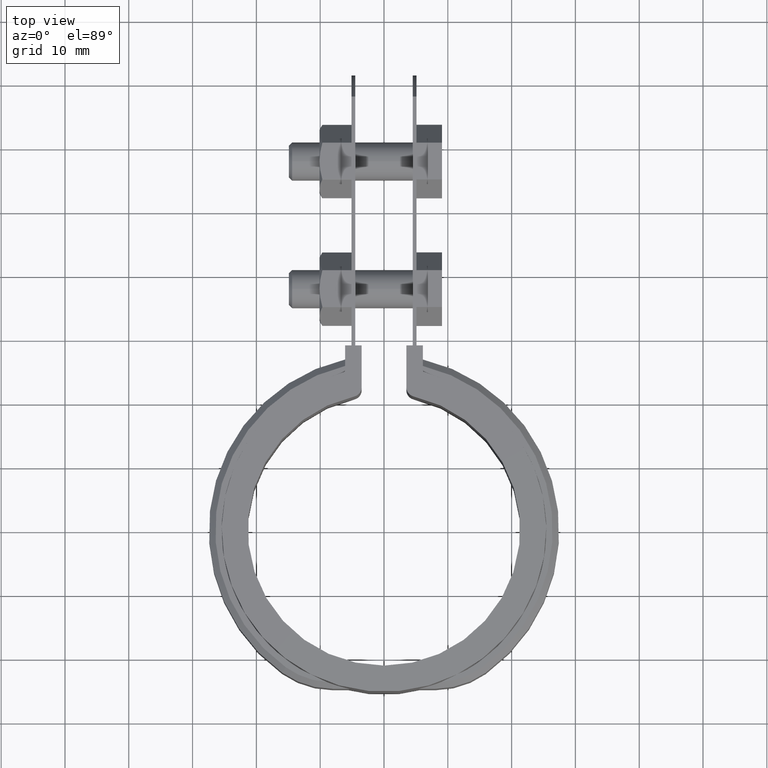
[diagram: clean part render]
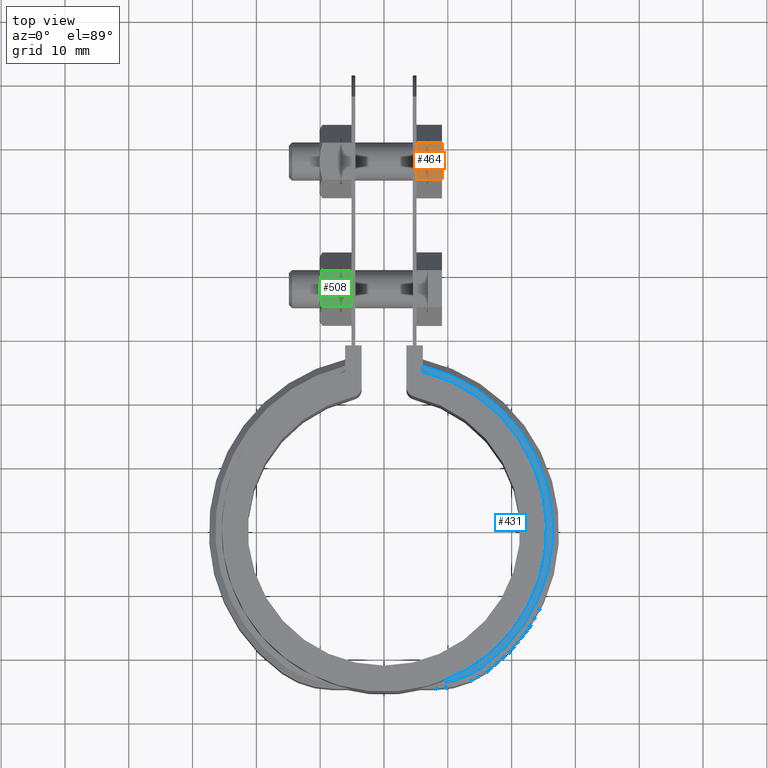
[diagram: same view with three faces highlighted in distinct colors, each labeled with its STEP entity id]
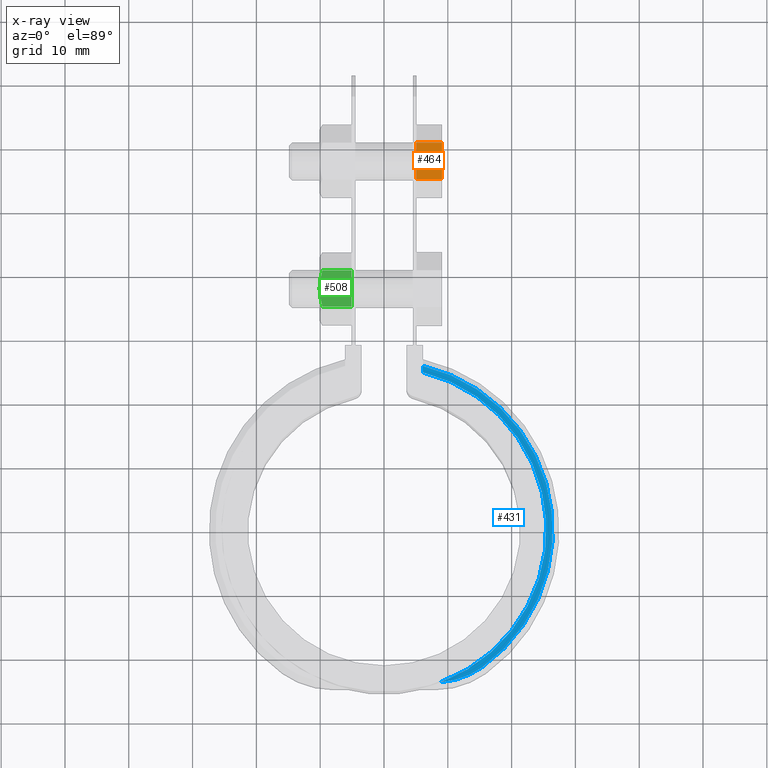
[diagram: x-ray of the same camera — body ghosted, the three highlighted faces saturated]
A machine part, top view with three faces highlighted in distinct colors.
The next image is the same camera in x-ray (body ghosted, the three faces saturated) — at least one of them is partly hidden behind the body in this view.
Their STEP definitions:

[orange] entity #464 — the highlighted planar face has unit normal (0, 0, -1).
#464 = ADVANCED_FACE( '', ( #855 ), #856, .F. );
#855 = FACE_OUTER_BOUND( '', #1701, .T. );
#856 = PLANE( '', #1702 );
#1701 = EDGE_LOOP( '', ( #4431, #4432, #4433, #4434 ) );
#1702 = AXIS2_PLACEMENT_3D( '', #4435, #4436, #4437 );
#4431 = ORIENTED_EDGE( '', *, *, #5283, .T. );
#4432 = ORIENTED_EDGE( '', *, *, #5299, .F. );
#4433 = ORIENTED_EDGE( '', *, *, #5295, .F. );
#4434 = ORIENTED_EDGE( '', *, *, #5300, .T. );
#4435 = CARTESIAN_POINT( '', ( 9.10000000000000, 60.7892623659209, -7.50000000000001 ) );
#4436 = DIRECTION( '', ( 0.000000000000000, 0.000000000000000, -1.00000000000000 ) );
#4437 = DIRECTION( '', ( -1.00000000000000, -1.76868732008753E-074, 0.000000000000000 ) );
#5283 = EDGE_CURVE( '', #6125, #6123, #6126, .T. );
#5295 = EDGE_CURVE( '', #6144, #6146, #6147, .T. );
#5299 = EDGE_CURVE( '', #6146, #6123, #6152, .T. );
#5300 = EDGE_CURVE( '', #6144, #6125, #6153, .T. );
#6123 = VERTEX_POINT( '', #9687 );
#6125 = VERTEX_POINT( '', #9690 );
#6126 = LINE( '', #9691, #9692 );
#6144 = VERTEX_POINT( '', #9717 );
#6146 = VERTEX_POINT( '', #9720 );
#6147 = LINE( '', #9721, #9722 );
#6152 = LINE( '', #9730, #9731 );
#6153 = LINE( '', #9732, #9733 );
#9687 = CARTESIAN_POINT( '', ( 5.10000000000000, 55.0157596740246, -7.50000000000001 ) );
#9690 = CARTESIAN_POINT( '', ( 5.10000000000000, 60.7892623659209, -7.50000000000001 ) );
#9691 = CARTESIAN_POINT( '', ( 5.10000000000000, 60.7892623659209, -7.50000000000001 ) );
#9692 = VECTOR( '', #10563, 1000.00000000000 );
#9717 = CARTESIAN_POINT( '', ( 9.10000000000000, 60.7892623659209, -7.50000000000001 ) );
#9720 = CARTESIAN_POINT( '', ( 9.10000000000000, 55.0157596740246, -7.50000000000001 ) );
#9721 = CARTESIAN_POINT( '', ( 9.10000000000000, 60.7892623659209, -7.50000000000001 ) );
#9722 = VECTOR( '', #10581, 1000.00000000000 );
#9730 = CARTESIAN_POINT( '', ( 9.10000000000000, 55.0157596740246, -7.50000000000001 ) );
#9731 = VECTOR( '', #10585, 1000.00000000000 );
#9732 = CARTESIAN_POINT( '', ( 9.10000000000000, 60.7892623659209, -7.50000000000001 ) );
#9733 = VECTOR( '', #10586, 1000.00000000000 );
#10563 = DIRECTION( '', ( 1.76868732008753E-074, -1.00000000000000, 0.000000000000000 ) );
#10581 = DIRECTION( '', ( 1.76868732008753E-074, -1.00000000000000, 0.000000000000000 ) );
#10585 = DIRECTION( '', ( -1.00000000000000, -1.76868732008753E-074, 0.000000000000000 ) );
#10586 = DIRECTION( '', ( -1.00000000000000, -1.76868732008753E-074, 0.000000000000000 ) );

[blue] entity #431 — the highlighted planar face has unit normal (0, 0, 1).
#431 = ADVANCED_FACE( '', ( #786 ), #787, .T. );
#786 = FACE_OUTER_BOUND( '', #1632, .T. );
#787 = PLANE( '', #1633 );
#1632 = EDGE_LOOP( '', ( #4182, #4183, #4184, #4185 ) );
#1633 = AXIS2_PLACEMENT_3D( '', #4186, #4187, #4188 );
#4182 = ORIENTED_EDGE( '', *, *, #5223, .F. );
#4183 = ORIENTED_EDGE( '', *, *, #5261, .T. );
#4184 = ORIENTED_EDGE( '', *, *, #5257, .T. );
#4185 = ORIENTED_EDGE( '', *, *, #5240, .F. );
#4186 = CARTESIAN_POINT( '', ( -8.67361737988404E-016, -3.46944695195361E-015, -5.00000000000000 ) );
#4187 = DIRECTION( '', ( 0.000000000000000, 0.000000000000000, 1.00000000000000 ) );
#4188 = DIRECTION( '', ( 0.213196982952784, 0.977009235606210, 0.000000000000000 ) );
#5223 = EDGE_CURVE( '', #6035, #6037, #6038, .T. );
#5240 = EDGE_CURVE( '', #6037, #6063, #6064, .T. );
#5257 = EDGE_CURVE( '', #6087, #6063, #6088, .T. );
#5261 = EDGE_CURVE( '', #6035, #6087, #6093, .T. );
#6035 = VERTEX_POINT( '', #9551 );
#6037 = VERTEX_POINT( '', #9556 );
#6038 = CIRCLE( '', #9557, 25.4450000000000 );
#6063 = VERTEX_POINT( '', #9601 );
#6064 = LINE( '', #9602, #9603 );
#6087 = VERTEX_POINT( '', #9636 );
#6088 = CIRCLE( '', #9637, 26.4450000000000 );
#6093 = CIRCLE( '', #9643, 12.6000000000000 );
#9551 = CARTESIAN_POINT( '', ( 8.91979160752347, -23.8303449970485, -5.00000000000000 ) );
#9556 = CARTESIAN_POINT( '', ( 6.10000000000001, 24.7029962757557, -5.00000000000000 ) );
#9557 = AXIS2_PLACEMENT_3D( '', #10466, #10467, #10468 );
#9601 = CARTESIAN_POINT( '', ( 6.10000000000000, 25.7318484567277, -5.00000000000000 ) );
#9602 = CARTESIAN_POINT( '', ( 6.10000000000000, 24.7029962757557, -5.00000000000000 ) );
#9603 = VECTOR( '', #10485, 1000.00000000000 );
#9636 = CARTESIAN_POINT( '', ( 15.3872495721368, -21.5074539544962, -5.00000000000000 ) );
#9637 = AXIS2_PLACEMENT_3D( '', #10517, #10518, #10519 );
#9643 = AXIS2_PLACEMENT_3D( '', #10527, #10528, #10529 );
#10466 = CARTESIAN_POINT( '', ( -8.67361737988404E-016, -3.46944695195361E-015, -5.00000000000000 ) );
#10467 = DIRECTION( '', ( 0.000000000000000, 0.000000000000000, 1.00000000000000 ) );
#10468 = DIRECTION( '', ( 1.00000000000000, -2.77555756156289E-017, 0.000000000000000 ) );
#10485 = DIRECTION( '', ( 5.55111512312578E-017, 1.00000000000000, 0.000000000000000 ) );
#10517 = CARTESIAN_POINT( '', ( -8.67361737988404E-016, -3.46944695195361E-015, -5.00000000000000 ) );
#10518 = DIRECTION( '', ( 0.000000000000000, 0.000000000000000, 1.00000000000000 ) );
#10519 = DIRECTION( '', ( 1.00000000000000, 0.000000000000000, 0.000000000000000 ) );
#10527 = CARTESIAN_POINT( '', ( 8.05583173856056, -11.2600000000000, -5.00000000000000 ) );
#10528 = DIRECTION( '', ( 0.000000000000000, 0.000000000000000, 1.00000000000000 ) );
#10529 = DIRECTION( '', ( 1.00000000000000, 0.000000000000000, 0.000000000000000 ) );

[green] entity #508 — the highlighted planar face has unit normal (0, -0, -1).
#508 = ADVANCED_FACE( '', ( #953 ), #954, .F. );
#953 = FACE_OUTER_BOUND( '', #1799, .T. );
#954 = PLANE( '', #1800 );
#1799 = EDGE_LOOP( '', ( #4763, #4764, #4765, #4766, #4767 ) );
#1800 = AXIS2_PLACEMENT_3D( '', #4768, #4769, #4770 );
#4763 = ORIENTED_EDGE( '', *, *, #5405, .F. );
#4764 = ORIENTED_EDGE( '', *, *, #5410, .F. );
#4765 = ORIENTED_EDGE( '', *, *, #5404, .F. );
#4766 = ORIENTED_EDGE( '', *, *, #5401, .F. );
#4767 = ORIENTED_EDGE( '', *, *, #5411, .F. );
#4768 = CARTESIAN_POINT( '', ( -5.10000000000003, 40.7892623659211, -7.50000000000009 ) );
#4769 = DIRECTION( '', ( 0.000000000000000, -5.55111512312621E-017, -1.00000000000000 ) );
#4770 = DIRECTION( '', ( 0.000000000000000, 1.00000000000000, -5.55111512312621E-017 ) );
#5401 = EDGE_CURVE( '', #6325, #6307, #6327, .T. );
#5404 = EDGE_CURVE( '', #6307, #6328, #6332, .F. );
#5405 = EDGE_CURVE( '', #6285, #6333, #6334, .T. );
#5410 = EDGE_CURVE( '', #6328, #6285, #6340, .T. );
#5411 = EDGE_CURVE( '', #6333, #6325, #6341, .T. );
#6285 = VERTEX_POINT( '', #9973 );
#6307 = VERTEX_POINT( '', #10008 );
#6325 = VERTEX_POINT( '', #10030 );
#6327 = LINE( '', #10032, #10033 );
#6328 = VERTEX_POINT( '', #10034 );
#6332 = LINE( '', #10039, #10040 );
#6333 = VERTEX_POINT( '', #10041 );
#6334 = B_SPLINE_CURVE_WITH_KNOTS( '', 3, ( #10042, #10043, #10044, #10045, #10046, #10047, #10048, #10049 ), .UNSPECIFIED., .F., .F., ( 4, 2, 2, 4 ), ( 0.00287277010488787, 0.00358771851305256, 0.00430266692121725, 0.00573256373754661 ), .UNSPECIFIED. );
#6340 = B_SPLINE_CURVE_WITH_KNOTS( '', 3, ( #10064, #10065, #10066, #10067 ), .UNSPECIFIED., .F., .F., ( 4, 4 ), ( 7.22330826798402E-007, 0.00287277010488787 ), .UNSPECIFIED. );
#6341 = LINE( '', #10068, #10069 );
#9973 = CARTESIAN_POINT( '', ( -10.1000000000001, 37.9025110199730, -7.50000000000009 ) );
#10008 = CARTESIAN_POINT( '', ( -5.10000000000003, 35.0630568470728, -7.50000000000008 ) );
#10030 = CARTESIAN_POINT( '', ( -5.10000000000003, 40.7419651928731, -7.50000000000009 ) );
#10032 = CARTESIAN_POINT( '', ( -5.10000000000003, 40.7775110199730, -7.50000000000009 ) );
#10033 = VECTOR( '', #10753, 999.999999999998 );
#10034 = CARTESIAN_POINT( '', ( -9.66698729810783, 35.0630568470728, -7.50000000000009 ) );
#10039 = CARTESIAN_POINT( '', ( -5.10000000000003, 35.0630568470728, -7.50000000000009 ) );
#10040 = VECTOR( '', #10758, 1000.00000000001 );
#10041 = CARTESIAN_POINT( '', ( -9.66698729810783, 40.7419651928731, -7.50000000000009 ) );
#10042 = CARTESIAN_POINT( '', ( -10.1000000000001, 37.9025110199730, -7.50000000000009 ) );
#10043 = CARTESIAN_POINT( '', ( -10.1000000000001, 38.1431339786640, -7.50000000000009 ) );
#10044 = CARTESIAN_POINT( '', ( -10.0898108720833, 38.3851472901723, -7.50000000000009 ) );
#10045 = CARTESIAN_POINT( '', ( -10.0502996398894, 38.8639637270828, -7.50000000000009 ) );
#10046 = CARTESIAN_POINT( '', ( -10.0210226875360, 39.1017969030003, -7.50000000000009 ) );
#10047 = CARTESIAN_POINT( '', ( -9.90799451667579, 39.8111282299870, -7.50000000000009 ) );
#10048 = CARTESIAN_POINT( '', ( -9.79913188755709, 40.2784723906045, -7.50000000000009 ) );
#10049 = CARTESIAN_POINT( '', ( -9.66698729810785, 40.7419651928731, -7.50000000000009 ) );
#10064 = CARTESIAN_POINT( '', ( -9.66698729810785, 35.0630568470728, -7.50000000000009 ) );
#10065 = CARTESIAN_POINT( '', ( -9.93203573458753, 35.9927055226098, -7.50000000000009 ) );
#10066 = CARTESIAN_POINT( '', ( -10.1000000000001, 36.9358949327077, -7.50000000000009 ) );
#10067 = CARTESIAN_POINT( '', ( -10.1000000000001, 37.9025110199730, -7.50000000000009 ) );
#10068 = CARTESIAN_POINT( '', ( -5.10000000000003, 40.7419651928731, -7.50000000000009 ) );
#10069 = VECTOR( '', #10763, 1000.00000000001 );
#10753 = DIRECTION( '', ( 0.000000000000000, -1.00000000000000, 8.32667268468869E-016 ) );
#10758 = DIRECTION( '', ( 1.00000000000000, 0.000000000000000, 0.000000000000000 ) );
#10763 = DIRECTION( '', ( 1.00000000000000, 0.000000000000000, 0.000000000000000 ) );